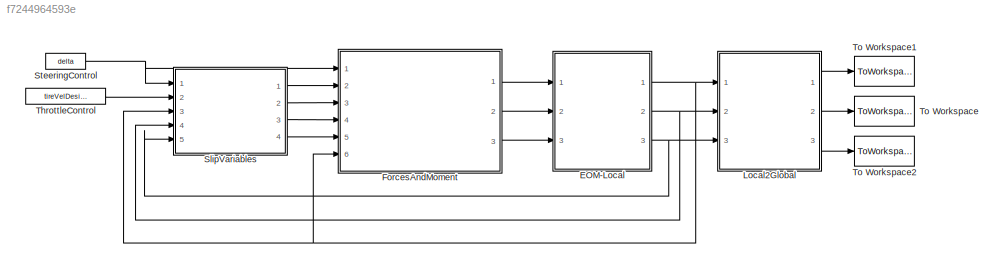
MODEL slx_f7244964593e
KIND model
CONFIG AbsTol = auto
CONFIG EnableMultiTasking = off
CONFIG FixedStep = auto
CONFIG MaxStep = auto
CONFIG MinStep = auto
CONFIG RelTol = 1e-3
CONFIG SampleTimeConstraint = Unconstrained
CONFIG Solver = ode15s
CONFIG SolverName = ode15s
CONFIG StartTime = 0.0
CONFIG StopTime = 10
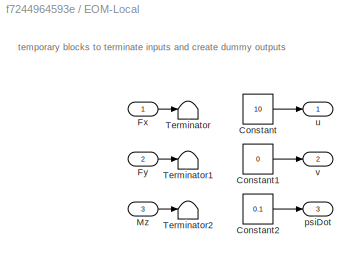
BLOCK [SubSystem] EOM-Local
  Ports = [3, 3]
  RequestExecContextInheritance = off
BLOCK [Constant] EOM-Local/Constant
  Value = 10
BLOCK [Constant] EOM-Local/Constant1
  Value = 0
BLOCK [Constant] EOM-Local/Constant2
  Value = 0.1
BLOCK [Inport] EOM-Local/Fx
  IconDisplay = Port number and signal name
BLOCK [Inport] EOM-Local/Fy
  IconDisplay = Port number and signal name
  Port = 2
BLOCK [Inport] EOM-Local/Mz
  IconDisplay = Port number and signal name
  Port = 3
BLOCK [Terminator] EOM-Local/Terminator
BLOCK [Terminator] EOM-Local/Terminator1
BLOCK [Terminator] EOM-Local/Terminator2
BLOCK [Outport] EOM-Local/psiDot
  IconDisplay = Port number
  Port = 3
BLOCK [Outport] EOM-Local/u
  IconDisplay = Port number
BLOCK [Outport] EOM-Local/v
  IconDisplay = Port number
  Port = 2
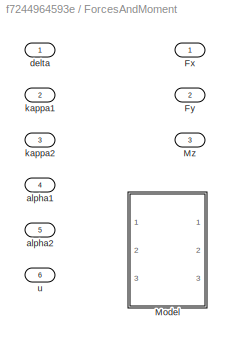
BLOCK [SubSystem] ForcesAndMoment
  Ports = [6, 3]
  RequestExecContextInheritance = off
BLOCK [Outport] ForcesAndMoment/Fx
  IconDisplay = Port number
BLOCK [Outport] ForcesAndMoment/Fy
  IconDisplay = Port number
  Port = 2
BLOCK [ModelReference] ForcesAndMoment/Model
  ModelNameDialog = TireForces
  ModelReferenceVersion = 1.12
  Ports = [3, 3]
BLOCK [Outport] ForcesAndMoment/Mz
  IconDisplay = Port number
  Port = 3
BLOCK [Inport] ForcesAndMoment/alpha1
  IconDisplay = Port number
  Port = 4
BLOCK [Inport] ForcesAndMoment/alpha2
  IconDisplay = Port number
  Port = 5
BLOCK [Inport] ForcesAndMoment/delta
  IconDisplay = Port number
BLOCK [Inport] ForcesAndMoment/kappa1
  IconDisplay = Port number
  Port = 2
BLOCK [Inport] ForcesAndMoment/kappa2
  IconDisplay = Port number
  Port = 3
BLOCK [Inport] ForcesAndMoment/u
  IconDisplay = Port number
  Port = 6
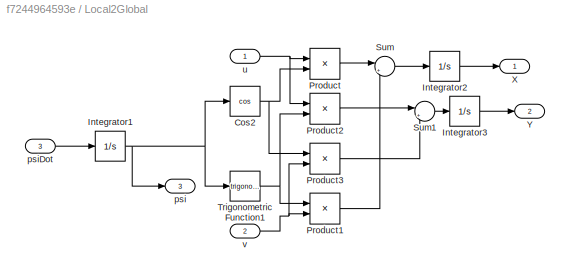
BLOCK [SubSystem] Local2Global
  Ports = [3, 3]
  RequestExecContextInheritance = off
BLOCK [Trigonometry] Local2Global/Cos2
  Operator = cos
  Ports = [1, 1]
BLOCK [Integrator] Local2Global/Integrator1
  Ports = [1, 1]
BLOCK [Integrator] Local2Global/Integrator2
  Ports = [1, 1]
BLOCK [Integrator] Local2Global/Integrator3
  Ports = [1, 1]
BLOCK [Product] Local2Global/Product
  InputSameDT = off
  OutDataTypeStr = Inherit: Inherit via internal rule
  Ports = [2, 1]
  RndMeth = Floor
  SaturateOnIntegerOverflow = off
BLOCK [Product] Local2Global/Product1
  InputSameDT = off
  OutDataTypeStr = Inherit: Inherit via internal rule
  Ports = [2, 1]
  RndMeth = Floor
  SaturateOnIntegerOverflow = off
BLOCK [Product] Local2Global/Product2
  InputSameDT = off
  OutDataTypeStr = Inherit: Inherit via internal rule
  Ports = [2, 1]
  RndMeth = Floor
  SaturateOnIntegerOverflow = off
BLOCK [Product] Local2Global/Product3
  InputSameDT = off
  OutDataTypeStr = Inherit: Inherit via internal rule
  Ports = [2, 1]
  RndMeth = Floor
  SaturateOnIntegerOverflow = off
BLOCK [Sum] Local2Global/Sum
  IconShape = round
  InputSameDT = off
  Inputs = |+-
  OutDataTypeStr = Inherit: Inherit via internal rule
  Ports = [2, 1]
  SaturateOnIntegerOverflow = off
BLOCK [Sum] Local2Global/Sum1
  IconShape = round
  InputSameDT = off
  Inputs = |++
  OutDataTypeStr = Inherit: Inherit via internal rule
  Ports = [2, 1]
  SaturateOnIntegerOverflow = off
BLOCK [Trigonometry] Local2Global/Trigonometric Function1
  Ports = [1, 1]
BLOCK [Outport] Local2Global/X
  IconDisplay = Port number
BLOCK [Outport] Local2Global/Y
  IconDisplay = Port number
  Port = 2
BLOCK [Outport] Local2Global/psi
  IconDisplay = Port number
  Port = 3
BLOCK [Inport] Local2Global/psiDot
  IconDisplay = Port number
  Port = 3
BLOCK [Inport] Local2Global/u
  IconDisplay = Port number
BLOCK [Inport] Local2Global/v
  IconDisplay = Port number
  Port = 2
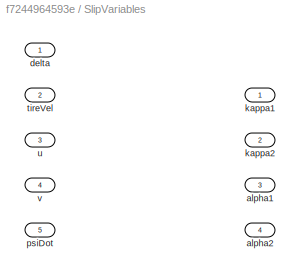
BLOCK [SubSystem] SlipVariables
  Ports = [5, 4]
  RequestExecContextInheritance = off
BLOCK [Outport] SlipVariables/alpha1
  IconDisplay = Port number
  Port = 3
BLOCK [Outport] SlipVariables/alpha2
  IconDisplay = Port number
  Port = 4
BLOCK [Inport] SlipVariables/delta
  IconDisplay = Port number
BLOCK [Outport] SlipVariables/kappa1
  IconDisplay = Port number
BLOCK [Outport] SlipVariables/kappa2
  IconDisplay = Port number
  Port = 2
BLOCK [Inport] SlipVariables/psiDot
  IconDisplay = Port number
  Port = 5
BLOCK [Inport] SlipVariables/tireVel
  IconDisplay = Port number
  Port = 2
BLOCK [Inport] SlipVariables/u
  IconDisplay = Port number and signal name
  Port = 3
BLOCK [Inport] SlipVariables/v
  IconDisplay = Port number and signal name
  Port = 4
BLOCK [Constant] SteeringControl
  Value = delta
BLOCK [Constant] ThrottleControl
  Value = tireVelDesired
BLOCK [ToWorkspace] To Workspace
  FixptAsFi = on
  MaxDataPoints = inf
  Ports = [1]
  SampleTime = -1
  SaveFormat = Timeseries
  VariableName = Y
BLOCK [ToWorkspace] To Workspace1
  FixptAsFi = on
  MaxDataPoints = inf
  Ports = [1]
  SampleTime = -1
  SaveFormat = Timeseries
  VariableName = X
BLOCK [ToWorkspace] To Workspace2
  FixptAsFi = on
  MaxDataPoints = inf
  Ports = [1]
  SampleTime = -1
  SaveFormat = Timeseries
  VariableName = psi
ANNOTATION EOM-Local: temporary blocks to terminate inputs and create dummy outputs
LINE EOM-Local/Constant1:1 -> EOM-Local/v:1
LINE EOM-Local/Constant2:1 -> EOM-Local/psiDot:1
LINE EOM-Local/Constant:1 -> EOM-Local/u:1
LINE EOM-Local/Fx:1 -> EOM-Local/Terminator:1
LINE EOM-Local/Fy:1 -> EOM-Local/Terminator1:1
LINE EOM-Local/Mz:1 -> EOM-Local/Terminator2:1
NET EOM-Local:1 -> ForcesAndMoment:6, Local2Global:1, SlipVariables:3
NET EOM-Local:2 -> Local2Global:2, SlipVariables:4
NET EOM-Local:3 -> Local2Global:3, SlipVariables:5
LINE ForcesAndMoment:1 -> EOM-Local:1
LINE ForcesAndMoment:2 -> EOM-Local:2
LINE ForcesAndMoment:3 -> EOM-Local:3
NET Local2Global/Cos2:1 -> Local2Global/Product3:1, Local2Global/Product:2
NET Local2Global/Integrator1:1 -> Local2Global/Cos2:1, Local2Global/Trigonometric Function1:1, Local2Global/psi:1
LINE Local2Global/Integrator2:1 -> Local2Global/X:1
LINE Local2Global/Integrator3:1 -> Local2Global/Y:1
LINE Local2Global/Product1:1 -> Local2Global/Sum:2
LINE Local2Global/Product2:1 -> Local2Global/Sum1:1
LINE Local2Global/Product3:1 -> Local2Global/Sum1:2
LINE Local2Global/Product:1 -> Local2Global/Sum:1
LINE Local2Global/Sum1:1 -> Local2Global/Integrator3:1
LINE Local2Global/Sum:1 -> Local2Global/Integrator2:1
NET Local2Global/Trigonometric Function1:1 -> Local2Global/Product1:1, Local2Global/Product2:2
LINE Local2Global/psiDot:1 -> Local2Global/Integrator1:1
NET Local2Global/u:1 -> Local2Global/Product2:1, Local2Global/Product:1
NET Local2Global/v:1 -> Local2Global/Product1:2, Local2Global/Product3:2
LINE Local2Global:1 -> To Workspace1:1
LINE Local2Global:2 -> To Workspace:1
LINE Local2Global:3 -> To Workspace2:1
LINE SlipVariables:1 -> ForcesAndMoment:2
LINE SlipVariables:2 -> ForcesAndMoment:3
LINE SlipVariables:3 -> ForcesAndMoment:4
LINE SlipVariables:4 -> ForcesAndMoment:5
NET SteeringControl:1 -> ForcesAndMoment:1, SlipVariables:1
LINE ThrottleControl:1 -> SlipVariables:2
note: NET lines group one-source signal fan-out (src -> all destinations, sorted); 1:1 wires keep LINE
